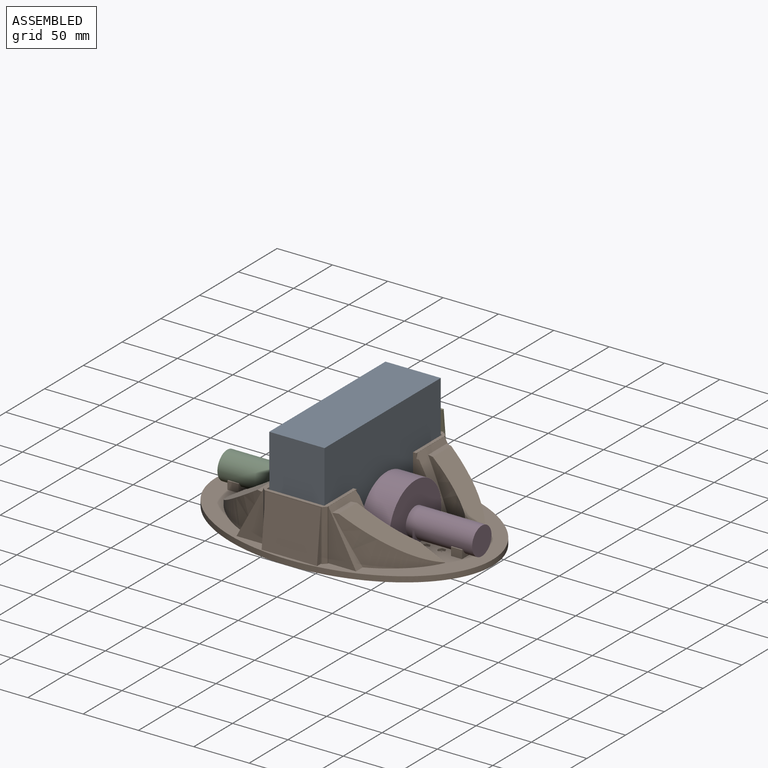
[diagram: assembled view]
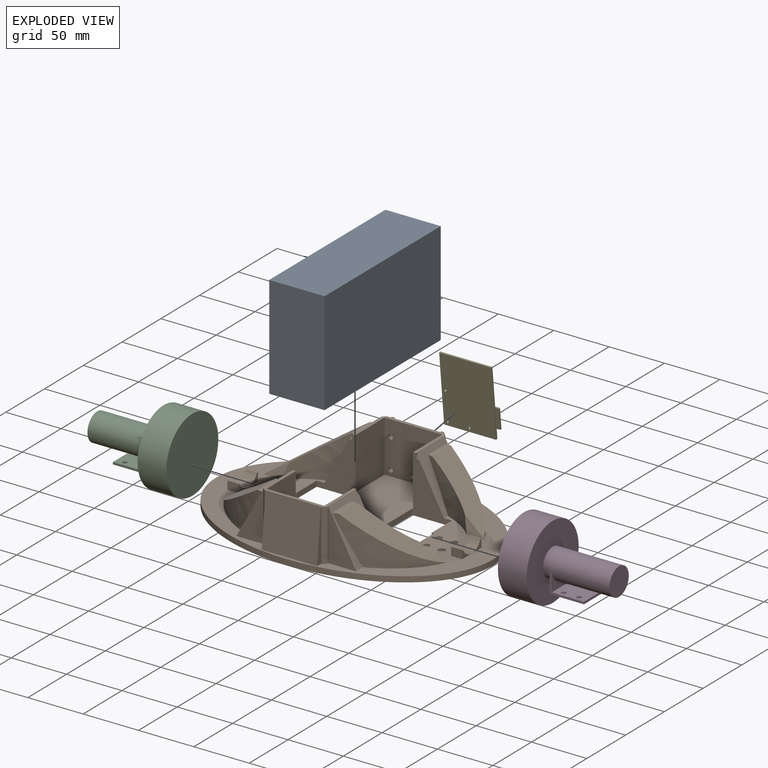
[diagram: exploded view]
GUIDED TOUR — FREECAD ASSEMBLY "chassis-v1"

This assembly has 5 components, labeled P0..P4 below (a component is one placed body or linked part; the same part can appear more than once), held together by 0 modeled joints plus 4 derived contact edges. A joint is a constraint between two components; its type names the relative motion it leaves free:
  CONTACT — a derived adjacency edge — the two components touch in the source model (clearance under 2% of the assembly's diagonal); it is measured from the geometry, not a modeled constraint.
Axis/direction vectors are unit vectors and 'through' points are millimeter coordinates, both in the assembly's world frame.

MATES
  1. CONTACT "contact_0_1": P0 <-> P1, contact direction (0.000, 0.000, -1.000) through (25.76, 75.01, 5.01) mm (derived from contact, not a modeled constraint)
  2. CONTACT "contact_1_2": P1 <-> P2, contact direction (-1.000, 0.000, 0.000) through (-63.00, -12.50, 0.00) mm (derived from contact, not a modeled constraint)
  3. CONTACT "contact_1_3": P1 <-> P3, contact direction (1.000, 0.000, 0.000) through (63.04, 12.54, -0.21) mm (derived from contact, not a modeled constraint)
  4. CONTACT "contact_1_4": P1 <-> P4, contact direction (-0.019, 0.990, 0.143) through (-19.79, 86.49, 10.50) mm (derived from contact, not a modeled constraint)

ASSEMBLY ORDER
  1. P1 — the base component [order heuristic]
  2. P2 — core [order heuristic]
  3. P3 — core [order heuristic]
  4. P0 [order verified]
  5. P4 [order verified]
Order-tag legend:
  [order verified] — this step's position reverses a verified removal order: the component was checked to insert without passing through the ones already placed.
  [order heuristic] — the first 3 components form the assembly's core: parts whose collision-free extraction could not be verified, listed in mate-graph order.

Of the 5 components, 5 carry a construction recipe — the FreeCAD feature program (sketches with constraints, then the solid features that consume them) that regenerates the part from scratch, quoted from this document or from the linked companion document it references; the rest are supplied as boundary geometry only. The tour below walks the components in assembly order: each is shown spotlighted twice — in the assembled view, then in the exploded view, where a leader line traces a displaced component back to its assembled socket (components that stay in place when exploded have no leader line; saturated green if recipe-attached, orange if geometry-only; every other component desaturated gray) — followed by its recipe or geometry summary and the mates that hold it.
NOTE — this tour is split across 2 documents so each fits a 32k-token context. This is document 1: the component sections continue in the remaining 1 document, each repeating the header above.
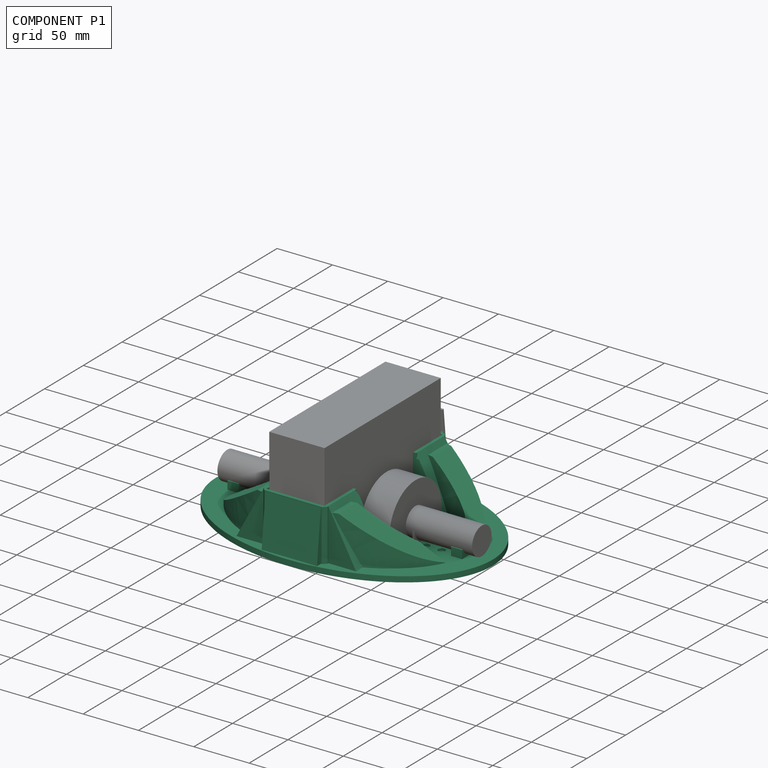
[diagram: component P1 — assembled]
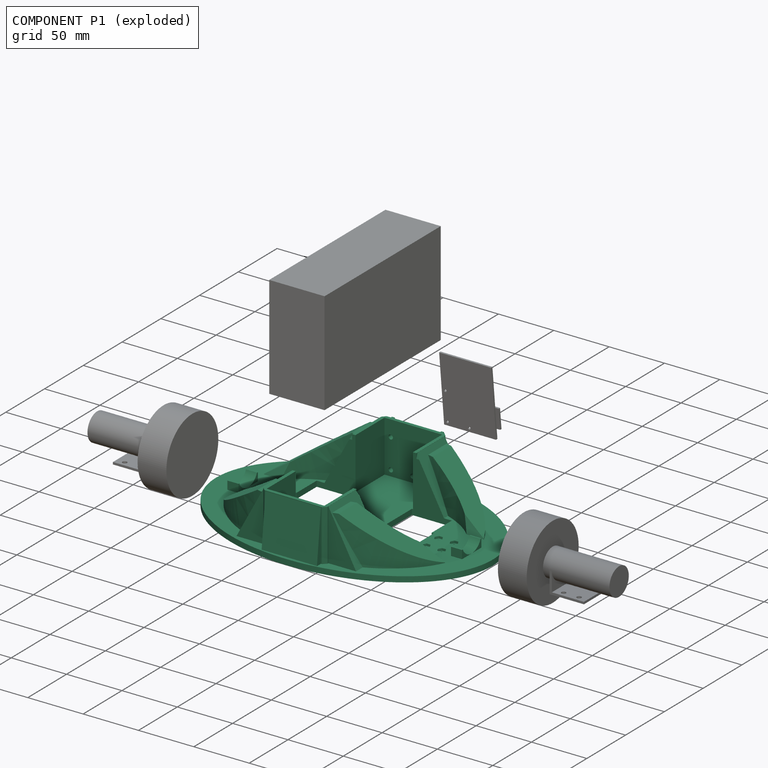
[diagram: component P1 — exploded]
COMPONENT P1 — recipe-attached ("Chassis V002", modeled in this document).
Held by: resting contact with P0 (derived edge); resting contact with P2 (derived edge); resting contact with P3 (derived edge); resting contact with P4 (derived edge).
Construction recipe (the document's own serialized feature program — sketch geometry with constraints, then the solid features built on it; lengths are millimeters unless a unit is written):

FEATURE [Sketcher::SketchObject] Sketch015
  ArcFitTolerance = 0
  AttachmentSupport = -> [XY_Plane]
  FullyConstrained = true
  MakeInternals = false
  MapMode = 5
  expr: Constraints[11] = <<common-components>>#<<battery_dim>>.width + <<common-components>>#<<battery_dim>>.tolerance * 2
  expr: Constraints[12] = <<common-components>>#<<battery_dim>>.length + <<common-components>>#<<battery_dim>>.tolerance * 2
  expr: Constraints[50] = <<common-components>>#<<dc_motor_dim>>.wheel_diameter + <<common-components>>#<<dc_motor_dim>>.wheel_tolerance * 2
  sketch-geometry (20):
    g0: LineSegment StartX=-26 StartY=76 StartZ=0 EndX=26 EndY=76 EndZ=0
    g1: LineSegment [constr] StartX=26 StartY=76 StartZ=0 EndX=26 EndY=-76 EndZ=0
    g2: LineSegment StartX=26 StartY=-76 StartZ=0 EndX=-26 EndY=-76 EndZ=0
    g3: LineSegment [constr] StartX=-26 StartY=-76 StartZ=0 EndX=-26 EndY=76 EndZ=0
    g4: GeomPoint X=1.1e-15 Y=-76 Z=0
    g5: GeomPoint X=-1.1e-15 Y=76 Z=0
    g6: LineSegment StartX=26 StartY=76 StartZ=0 EndX=26 EndY=38.5 EndZ=0
    g7: LineSegment StartX=26 StartY=38.5 StartZ=0 EndX=29 EndY=38.5 EndZ=0
    g8: LineSegment StartX=29 StartY=38.5 StartZ=0 EndX=29 EndY=79 EndZ=0
    g9: LineSegment StartX=29 StartY=79 StartZ=0 EndX=-29 EndY=79 EndZ=0
    g10: LineSegment StartX=-29 StartY=79 StartZ=0 EndX=-29 EndY=38.5 EndZ=0
    g11: LineSegment StartX=-29 StartY=38.5 StartZ=0 EndX=-26 EndY=38.5 EndZ=0
    g12: LineSegment StartX=-26 StartY=38.5 StartZ=0 EndX=-26 EndY=76 EndZ=0
    g13: LineSegment StartX=-26 StartY=-38.5 StartZ=0 EndX=-26 EndY=-76 EndZ=0
    g14: LineSegment StartX=-26 StartY=-38.5 StartZ=0 EndX=-29 EndY=-38.5 EndZ=0
    g15: LineSegment StartX=-29 StartY=-38.5 StartZ=0 EndX=-29 EndY=-79 EndZ=0
    g16: LineSegment StartX=-29 StartY=-79 StartZ=0 EndX=29 EndY=-79 EndZ=0
    g17: LineSegment StartX=29 StartY=-79 StartZ=0 EndX=29 EndY=-38.5 EndZ=0
    g18: LineSegment StartX=29 StartY=-38.5 StartZ=0 EndX=26 EndY=-38.5 EndZ=0
    g19: LineSegment StartX=26 StartY=-38.5 StartZ=0 EndX=26 EndY=-76 EndZ=0
  constraints (53):
    c: Coincident(g0,g1)
    c: Coincident(g1,g2)
    c: Coincident(g2,g3)
    c: Coincident(g3,g0)
    c: Horizontal(g0)
    c: Horizontal(g2)
    c: Vertical(g1)
    c: Vertical(g3)
    c: Symmetric(g2,g1,g4)
    c: Symmetric(g0,g0,g5)
    c: Symmetric(g5,g4,g-1)
    c: Distance(g0) = 52
    c: Distance(g1) = 152
    c: PointOnObject(g6,g1)
    c: Coincident(g7,g6)
    c: Horizontal(g7)
    c: Coincident(g8,g7)
    c: Vertical(g8)
    c: Coincident(g9,g8)
    c: Horizontal(g9)
    c: Coincident(g10,g9)
    c: Vertical(g10)
    c: Coincident(g11,g10)
    c: PointOnObject(g11,g3)
    c: Horizontal(g11)
    c: Coincident(g12,g11)
    c: PointOnObject(g13,g3)
    c: Coincident(g13,g2)
    c: Coincident(g14,g13)
    c: Horizontal(g14)
    c: Coincident(g15,g14)
    c: Vertical(g15)
    c: Coincident(g16,g15)
    c: Horizontal(g16)
    c: Coincident(g17,g16)
    c: Vertical(g17)
    c: Coincident(g18,g17)
    c: PointOnObject(g18,g1)
    c: Coincident(g19,g18)
    c: Coincident(g19,g1)
    c: Horizontal(g18)
    c: Equal(g8,g10)
    c: Equal(g15,g17)
    c: Equal(g15,g10)
    c: Equal(g11,g7)
    c: Equal(g11,g14)
    c: Equal(g14,g18)
    c: Distance(g11) = 3
    c: DistanceY(g0,g9) = 3
    c: DistanceY(g15,g2) = 3
    c: DistanceY(g13,g11) = 77
    c: Coincident(g12,g0)
    c: Coincident(g6,g0)
FEATURE [Sketcher::SketchObject] Sketch008
  ArcFitTolerance = 0
  AttachmentSupport = -> [YZ_Plane]
  FullyConstrained = true
  MakeInternals = false
  MapMode = 5
  Placement = pos=(0,0,0) rot=(0.57735,0.57735,0.57735;2.0944rad)
  expr: Constraints[1] = <<common-components>>#<<dc_motor_dim>>.motor_diameter
  expr: Constraints[2] = <<common-components>>#<<dc_motor_dim>>.bracket_motor_distance + <<common-components>>#<<dc_motor_dim>>.motor_diameter / 2
  sketch-geometry (1):
    g0: Circle CenterX=0 CenterY=17.5 CenterZ=0 NormalX=0 NormalY=0 NormalZ=1 AngleXU=0 Radius=12.5
  constraints (3):
    c: PointOnObject(g0,g-2)
    c: Diameter(g0) = 25
    c: DistanceY(g-1,g0) = 17.5
FEATURE [Sketcher::SketchObject] Sketch007
  ArcFitTolerance = 0
  AttachmentSupport = -> [XY_Plane]
  FullyConstrained = true
  MakeInternals = false
  MapMode = 5
  expr: Constraints[27] = <<common-components>>#<<dc_motor_dim>>.motor_diameter
  expr: Constraints[5] = <<dim>>.wheel_distance / 2 + <<common-components>>#<<dc_motor_dim>>.wheel_tolerance * 2 + <<common-components>>#<<dc_motor_dim>>.wheel_width + <<common-components>>#<<dc_motor_dim>>.wheel_bracket_distance + <<common-components>>#<<dc_motor_dim>>.bracket_length
  sketch-geometry (10):
    g0: LineSegment [constr] StartX=0 StartY=0 StartZ=0 EndX=-96 EndY=0 EndZ=0
    g1: LineSegment [constr] StartX=0 StartY=0 StartZ=0 EndX=96 EndY=0 EndZ=0
    g2: LineSegment StartX=-96 StartY=12.5 StartZ=0 EndX=-106 EndY=12.5 EndZ=0
    g3: LineSegment StartX=-106 StartY=12.5 StartZ=0 EndX=-106 EndY=-12.5 EndZ=0
    g4: LineSegment StartX=-106 StartY=-12.5 StartZ=0 EndX=-96 EndY=-12.5 EndZ=0
    g5: LineSegment StartX=-96 StartY=-12.5 StartZ=0 EndX=-96 EndY=12.5 EndZ=0
    g6: LineSegment StartX=96 StartY=12.5 StartZ=0 EndX=106 EndY=12.5 EndZ=0
    g7: LineSegment StartX=106 StartY=12.5 StartZ=0 EndX=106 EndY=-12.5 EndZ=0
    g8: LineSegment StartX=106 StartY=-12.5 StartZ=0 EndX=96 EndY=-12.5 EndZ=0
    g9: LineSegment StartX=96 StartY=-12.5 StartZ=0 EndX=96 EndY=12.5 EndZ=0
  constraints (28):
    c: Coincident(g0,g-1)
    c: Coincident(g1,g0)
    c: Horizontal(g1)
    c: Horizontal(g0)
    c: Equal(g1,g0)
    c: Distance(g0) = 96
    c: Coincident(g2,g3)
    c: Coincident(g3,g4)
    c: Coincident(g4,g5)
    c: Coincident(g5,g2)
    c: Horizontal(g2)
    c: Horizontal(g4)
    c: Vertical(g3)
    c: Vertical(g5)
    c: Coincident(g6,g7)
    c: Coincident(g7,g8)
    c: Coincident(g8,g9)
    c: Coincident(g9,g6)
    c: Horizontal(g6)
    c: Horizontal(g8)
    c: Vertical(g7)
    c: Vertical(g9)
    c: Symmetric(g6,g8,g1)
    c: Symmetric(g2,g4,g0)
    c: Distance(g2) = 10
    c: Equal(g9,g5)
    c: Equal(g2,g6)
    c: Distance(g3) = 25
FEATURE [Sketcher::SketchObject] Sketch019
  ArcFitTolerance = 0
  AttachmentSupport = -> [XZ_Plane]
  FullyConstrained = true
  MakeInternals = false
  MapMode = 5
  Placement = pos=(0,0,0) rot=(1,0,0;1.5708rad)
  expr: Constraints[14] = <<common-components>>#<<battery_dim>>.width + <<common-components>>#<<battery_dim>>.tolerance * 2 + 3 * 2
  expr: Constraints[15] = <<common-components>>#<<battery_dim>>.height / 2 + 5
  sketch-geometry (7):
    g0: LineSegment StartX=29 StartY=51.5 StartZ=0 EndX=100 EndY=5 EndZ=0
    g1: LineSegment StartX=100 StartY=5 StartZ=0 EndX=100 EndY=52.5 EndZ=0
    g2: LineSegment StartX=100 StartY=52.5 StartZ=0 EndX=-100 EndY=52.5 EndZ=0
    g3: LineSegment StartX=-100 StartY=52.5 StartZ=0 EndX=-100 EndY=5 EndZ=0
    g4: LineSegment StartX=-100 StartY=5 StartZ=0 EndX=-29 EndY=51.5 EndZ=0
    g5: LineSegment StartX=-29 StartY=51.5 StartZ=0 EndX=29 EndY=51.5 EndZ=0
    g6: GeomPoint [constr] X=1.5e-15 Y=52.5 Z=0
  constraints (19):
    c: Coincident(g1,g0)
    c: Coincident(g2,g1)
    c: Horizontal(g2)
    c: Coincident(g3,g2)
    c: Coincident(g4,g3)
    c: Coincident(g5,g4)
    c: Coincident(g5,g0)
    c: Horizontal(g5)
    c: Vertical(g1)
    c: Vertical(g3)
    c: Equal(g0,g4)
    c: Equal(g3,g1)
    c: Symmetric(g1,g2,g6)
    c: PointOnObject(g6,g-2)
    c: Distance(g5) = 58
    c: DistanceY(g-1,g0) = 51.5
    c: DistanceY(g0,g1) = 1
    c: DistanceY(g-1,g3) = 5
    c: DistanceX(g2,g1) = 200
FEATURE [Sketcher::SketchObject] Sketch018
  ArcFitTolerance = 0
  AttachmentSupport = -> [YZ_Plane]
  FullyConstrained = true
  MakeInternals = false
  MapMode = 5
  Placement = pos=(0,0,0) rot=(0.57735,0.57735,0.57735;2.0944rad)
  expr: Constraints[10] = <<common-components>>#<<battery_dim>>.height / 2 + 5
  sketch-geometry (5):
    g0: LineSegment StartX=-40 StartY=51.5 StartZ=0 EndX=40 EndY=51.5 EndZ=0
    g1: LineSegment StartX=40 StartY=51.5 StartZ=0 EndX=25 EndY=5 EndZ=0
    g2: LineSegment StartX=25 StartY=5 StartZ=0 EndX=-25 EndY=5 EndZ=0
    g3: LineSegment StartX=-25 StartY=5 StartZ=0 EndX=-40 EndY=51.5 EndZ=0
    g4: GeomPoint [constr] X=0 Y=51.5 Z=0
  constraints (13):
    c: Horizontal(g0)
    c: Coincident(g1,g0)
    c: Coincident(g2,g1)
    c: Coincident(g3,g2)
    c: Coincident(g3,g0)
    c: Horizontal(g2)
    c: Equal(g1,g3)
    c: Symmetric(g0,g0,g4)
    c: PointOnObject(g4,g-2)
    c: DistanceY(g-1,g1) = 5
    c: DistanceY(g-1,g0) = 51.5
    c: Distance(g2) = 50
    c: Distance(g0) = 80
FEATURE [Sketcher::SketchObject] Sketch017
  ArcFitTolerance = 0
  AttachmentSupport = -> [XY_Plane]
  FullyConstrained = false
  MakeInternals = false
  MapMode = 5
  expr: Constraints[21] = <<common-components>>#<<battery_dim>>.width / 2 + <<common-components>>#<<battery_dim>>.tolerance
  expr: Constraints[22] = <<common-components>>#<<battery_dim>>.length
  expr: Constraints[23] = <<common-components>>#<<dc_motor_dim>>.wheel_diameter + <<common-components>>#<<dc_motor_dim>>.wheel_tolerance * 2 + 25
  expr: Constraints[44] = <<common-components>>#<<battery_dim>>.width / 2 + <<common-components>>#<<battery_dim>>.tolerance
  sketch-geometry (22):
    g0: ArcOfEllipse CenterX=0 CenterY=0 CenterZ=0 NormalX=0 NormalY=0 NormalZ=1 MajorRadius=105 MinorRadius=77.4108 AngleXU=-3.14159 StartAngle=4.96261 EndAngle=7.60376
    g1: LineSegment [constr] StartX=-105 StartY=0 StartZ=0 EndX=105 EndY=0 EndZ=0
    g2: LineSegment [constr] StartX=0 StartY=-77.4108 StartZ=0 EndX=0 EndY=77.4108 EndZ=0
    g3: GeomPoint [constr] X=-70.9406 Y=-8.7e-15 Z=0
    g4: GeomPoint [constr] X=70.9406 Y=0 Z=0
    g5: ArcOfEllipse CenterX=0 CenterY=0 CenterZ=0 NormalX=0 NormalY=0 NormalZ=1 MajorRadius=95 MinorRadius=53.0245 AngleXU=-3.14159 StartAngle=4.98961 EndAngle=7.57676
    g6: LineSegment [constr] StartX=-95 StartY=0 StartZ=0 EndX=95 EndY=0 EndZ=0
    g7: LineSegment [constr] StartX=0 StartY=-53.0245 StartZ=0 EndX=0 EndY=53.0245 EndZ=0
    g8: GeomPoint [constr] X=-78.8251 Y=-9.7e-15 Z=0
    g9: GeomPoint [constr] X=78.8251 Y=0 Z=0
    g10: LineSegment StartX=-26 StartY=-51 StartZ=0 EndX=-26 EndY=-75 EndZ=0
    g11: LineSegment StartX=-26 StartY=75 StartZ=0 EndX=-26 EndY=51 EndZ=0
    g12: LineSegment [constr] StartX=-26 StartY=51 StartZ=0 EndX=-26 EndY=-51 EndZ=0
    g13: LineSegment [constr] StartX=0 StartY=119.322 StartZ=0 EndX=0 EndY=-85.8681 EndZ=0
    g14: ArcOfEllipse CenterX=0 CenterY=0 CenterZ=0 NormalX=0 NormalY=0 NormalZ=1 MajorRadius=104.992 MinorRadius=77.4111 AngleXU=4e-16 StartAngle=4.96263 EndAngle=7.60374
    g15: GeomPoint [constr] X=70.9286 Y=2.84e-14 Z=0
    g16: ArcOfEllipse CenterX=0 CenterY=0 CenterZ=0 NormalX=0 NormalY=0 NormalZ=1 MajorRadius=95.0275 MinorRadius=53.0233 AngleXU=2e-16 StartAngle=4.98953 EndAngle=7.57684
    g17: GeomPoint [constr] X=78.8591 Y=1.58e-14 Z=0
    g18: LineSegment StartX=26 StartY=-51 StartZ=0 EndX=26 EndY=-75 EndZ=0
    g19: LineSegment StartX=26 StartY=75 StartZ=0 EndX=26 EndY=51 EndZ=0
    g20: LineSegment [constr] StartX=26 StartY=51 StartZ=0 EndX=26 EndY=-51 EndZ=0
    g21: GeomPoint [constr] X=26 Y=0 Z=0
  constraints (41):
    c: InternalAlignment(g1-g4 -> g0) x4
    c: Coincident(g0,g-1)
    c: InternalAlignment(g6-g9 -> g5) x4
    c: Coincident(g5,g0)
    c: PointOnObject(g1,g-1)
    c: PointOnObject(g6,g1)
    c: Coincident(g10,g5)
    c: Coincident(g10,g0)
    c: Coincident(g11,g0)
    c: Coincident(g11,g5)
    c: Vertical(g11)
    c: Vertical(g10)
    c: Coincident(g12,g5)
    c: Coincident(g12,g5)
    c: Vertical(g12)
    c: DistanceX(g5,g0) = 26
    c: DistanceY(g0,g0) = 150
    c: Distance(g12) = 102
    c: DistanceX(g6,g0) = 95
    c: DistanceX(g1,g0) = 105
    c: PointOnObject(g13,g-2)
    c: PointOnObject(g13,g-2)
    c: InternalAlignment(g15,g14)
    c: InternalAlignment(g17,g16)
    c: Coincident(g16,g14)
    c: Coincident(g18,g16)
    c: Coincident(g18,g14)
    c: Coincident(g19,g14)
    c: Coincident(g19,g16)
    c: Coincident(g20,g16)
    c: Coincident(g20,g16)
    c: Distance(g20) = 102
    c: Coincident(g14,g0)
    c: Vertical(g19)
    c: Vertical(g20)
    c: Vertical(g18)
    c: DistanceY(g14,g0) = 0
    c: DistanceY(g0,g14) = 0
    c: DistanceX(g0,g16) = 26
    c: PointOnObject(g21,g1)
    c: Symmetric(g16,g16,g21)
FEATURE [Sketcher::SketchObject] Sketch006
  ArcFitTolerance = 0
  AttachmentSupport = -> [XY_Plane]
  FullyConstrained = true
  MakeInternals = false
  MapMode = 5
  expr: Constraints[10] = <<common-components>>#<<battery_dim>>.length
  expr: Constraints[11] = <<common-components>>#<<battery_dim>>.width
  expr: Constraints[16] = <<common-components>>#<<dc_motor_dim>>.wheel_diameter + <<common-components>>#<<dc_motor_dim>>.wheel_tolerance * 2
  expr: Constraints[47] = <<common-components>>#<<battery_dim>>.tolerance
  expr: Constraints[48] = <<common-components>>#<<battery_dim>>.tolerance
  expr: Constraints[49] = <<common-components>>#<<battery_dim>>.tolerance
  expr: Constraints[60] = <<common-components>>#<<battery_dim>>.length / 2 - <<common-components>>#<<dc_motor_dim>>.wheel_diameter / 2 - <<common-components>>#<<dc_motor_dim>>.wheel_tolerance
  expr: Constraints[89] = <<common-components>>#<<battery_dim>>.tolerance
  expr: Constraints[90] = <<common-components>>#<<battery_dim>>.tolerance
  expr: Constraints[91] = <<common-components>>#<<battery_dim>>.tolerance
  sketch-geometry (40):
    g0: LineSegment [constr] StartX=-25 StartY=75 StartZ=0 EndX=25 EndY=75 EndZ=0
    g1: LineSegment [constr] StartX=25 StartY=75 StartZ=0 EndX=25 EndY=-75 EndZ=0
    g2: LineSegment [constr] StartX=25 StartY=-75 StartZ=0 EndX=-25 EndY=-75 EndZ=0
    g3: LineSegment [constr] StartX=-25 StartY=-75 StartZ=0 EndX=-25 EndY=75 EndZ=0
    g4: GeomPoint [constr] X=0 Y=0 Z=0
    g5: GeomPoint [constr] X=-25 Y=38.5 Z=0
    g6: GeomPoint [constr] X=-25 Y=-38.5 Z=0
    g7: GeomPoint [constr] X=25 Y=38.5 Z=0
    g8: GeomPoint [constr] X=25 Y=-38.5 Z=0
    g9: GeomPoint [constr] X=25 Y=0 Z=0
    g10: LineSegment StartX=-26 StartY=38.5 StartZ=0 EndX=-26 EndY=75 EndZ=0
    g11: LineSegment StartX=-26 StartY=75 StartZ=0 EndX=-29 EndY=75 EndZ=0
    g12: LineSegment StartX=-29 StartY=75 StartZ=0 EndX=-29 EndY=38.5 EndZ=0
    g13: LineSegment StartX=-29 StartY=38.5 StartZ=0 EndX=-26 EndY=38.5 EndZ=0
    g14: LineSegment StartX=-26 StartY=-38.5 StartZ=0 EndX=-29 EndY=-38.5 EndZ=0
    g15: LineSegment StartX=-29 StartY=-38.5 StartZ=0 EndX=-29 EndY=-75 EndZ=0
    g16: LineSegment StartX=-29 StartY=-75 StartZ=0 EndX=-26 EndY=-75 EndZ=0
    g17: LineSegment StartX=-26 StartY=-75 StartZ=0 EndX=-26 EndY=-38.5 EndZ=0
    g18: LineSegment StartX=-25 StartY=76 StartZ=0 EndX=25 EndY=76 EndZ=0
    g19: LineSegment StartX=25 StartY=76 StartZ=0 EndX=25 EndY=79 EndZ=0
    g20: LineSegment StartX=25 StartY=79 StartZ=0 EndX=-25 EndY=79 EndZ=0
    g21: LineSegment StartX=-25 StartY=79 StartZ=0 EndX=-25 EndY=76 EndZ=0
    g22: GeomPoint [constr] X=0 Y=76 Z=0
    g23: LineSegment [constr] StartX=-26 StartY=56.75 StartZ=0 EndX=-25 EndY=56.75 EndZ=0
    g24: LineSegment [constr] StartX=-26 StartY=-56.75 StartZ=0 EndX=-25 EndY=-56.75 EndZ=0
    g25: LineSegment StartX=26 StartY=38.5 StartZ=0 EndX=26 EndY=75 EndZ=0
    g26: LineSegment StartX=26 StartY=75 StartZ=0 EndX=29 EndY=75 EndZ=0
    g27: LineSegment StartX=29 StartY=75 StartZ=0 EndX=29 EndY=38.5 EndZ=0
    g28: LineSegment StartX=29 StartY=38.5 StartZ=0 EndX=26 EndY=38.5 EndZ=0
    g29: LineSegment StartX=26 StartY=-38.5 StartZ=0 EndX=29 EndY=-38.5 EndZ=0
    g30: LineSegment StartX=29 StartY=-38.5 StartZ=0 EndX=29 EndY=-75 EndZ=0
    g31: LineSegment StartX=29 StartY=-75 StartZ=0 EndX=26 EndY=-75 EndZ=0
    g32: LineSegment StartX=26 StartY=-75 StartZ=0 EndX=26 EndY=-38.5 EndZ=0
    g33: LineSegment StartX=-25 StartY=-76 StartZ=0 EndX=25 EndY=-76 EndZ=0
    g34: LineSegment StartX=25 StartY=-76 StartZ=0 EndX=25 EndY=-79 EndZ=0
    g35: LineSegment StartX=25 StartY=-79 StartZ=0 EndX=-25 EndY=-79 EndZ=0
    g36: LineSegment StartX=-25 StartY=-79 StartZ=0 EndX=-25 EndY=-76 EndZ=0
    g37: GeomPoint [constr] X=0 Y=-76 Z=0
    g38: LineSegment [constr] StartX=25 StartY=-56.75 StartZ=0 EndX=26 EndY=-56.75 EndZ=0
    g39: LineSegment [constr] StartX=25 StartY=56.75 StartZ=0 EndX=26 EndY=56.75 EndZ=0
  constraints (103):
    c: Coincident(g0,g1)
    c: Coincident(g1,g2)
    c: Coincident(g2,g3)
    c: Coincident(g3,g0)
    c: Horizontal(g0)
    c: Horizontal(g2)
    c: Vertical(g1)
    c: Vertical(g3)
    c: Symmetric(g1,g0,g4)
    c: Coincident(g4,g-1)
    c: Distance(g1) = 150
    c: Distance(g0) = 50
    c: PointOnObject(g5,g3)
    c: PointOnObject(g6,g3)
    c: PointOnObject(g7,g1)
    c: PointOnObject(g8,g1)
    c: DistanceY(g8,g7) = 77
    c: DistanceY(g5,g7) = 0
    c: DistanceY(g8,g6) = 0
    c: Symmetric(g7,g8,g9)
    c: PointOnObject(g9,g-1)
    c: Vertical(g10)
    c: Coincident(g11,g10)
    c: Coincident(g12,g11)
    c: Vertical(g12)
    c: Coincident(g13,g12)
    c: Coincident(g13,g10)
    c: Horizontal(g14)
    c: Coincident(g15,g14)
    c: Vertical(g15)
    c: Coincident(g16,g15)
    c: Horizontal(g16)
    c: Coincident(g17,g16)
    c: Coincident(g17,g14)
    c: Vertical(g17)
    c: Equal(g14,g13)
    c: Horizontal(g13)
    c: Equal(g15,g12)
    c: Horizontal(g11)
    c: Horizontal(g18)
    c: Coincident(g19,g18)
    c: Vertical(g19)
    c: Coincident(g20,g19)
    c: Horizontal(g20)
    c: Coincident(g21,g20)
    c: Coincident(g21,g18)
    c: Vertical(g21)
    c: DistanceX(g10,g0) = 1
    c: DistanceX(g16,g2) = 1
    c: DistanceY(g0,g18) = 1
    c: Equal(g21,g11)
    c: Symmetric(g18,g18,g22)
    c: PointOnObject(g22,g-2)
    c: Horizontal(g23)
    c: Horizontal(g24)
    c: Symmetric(g0,g5,g23)
    c: Symmetric(g6,g2,g24)
    c: Symmetric(g14,g16,g24)
    c: Symmetric(g10,g10,g23)
    c: Distance(g11) = 3
    c: Distance(g12) = 36.5
    c: Vertical(g25)
    c: Coincident(g26,g25)
    c: Coincident(g27,g26)
    c: Vertical(g27)
    c: Coincident(g28,g27)
    c: Coincident(g28,g25)
    c: Horizontal(g29)
    c: Coincident(g30,g29)
    c: Vertical(g30)
    c: Coincident(g31,g30)
    c: Horizontal(g31)
    c: Coincident(g32,g31)
    c: Coincident(g32,g29)
    c: Vertical(g32)
    c: Equal(g29,g28)
    c: Horizontal(g28)
    c: Equal(g30,g27)
    c: Horizontal(g26)
    c: Distance(g26) = 3
    c: Horizontal(g33)
    c: Coincident(g34,g33)
    c: Vertical(g34)
    c: Coincident(g35,g34)
    c: Horizontal(g35)
    c: Coincident(g36,g35)
    c: Coincident(g36,g33)
    c: Vertical(g36)
    c: Symmetric(g33,g33,g37)
    c: DistanceY(g33,g1) = 1
    c: DistanceX(g0,g25) = 1
    c: DistanceX(g1,g31) = 1
    c: Equal(g31,g34)
    c: Horizontal(g38)
    c: Horizontal(g39)
    c: Symmetric(g25,g25,g39)
    c: Symmetric(g29,g31,g38)
    c: Symmetric(g8,g1,g38)
    c: Symmetric(g0,g7,g39)
    c: PointOnObject(g37,g-2)
    c: Equal(g27,g10)
    c: Equal(g33,g18)
    c: Equal(g18,g0)
FEATURE [Sketcher::SketchObject] Sketch
  ArcFitTolerance = 0
  AttachmentSupport = -> [XY_Plane]
  FullyConstrained = false
  MakeInternals = false
  MapMode = 5
  expr: Constraints[11] = <<common-components>>#<<dc_motor_dim>>.wheel_diameter + <<common-components>>#<<dc_motor_dim>>.wheel_tolerance * 2
  expr: Constraints[12] = <<common-components>>#<<dc_motor_dim>>.wheel_width + <<common-components>>#<<dc_motor_dim>>.wheel_tolerance
  expr: Constraints[164] = <<common-components>>#<<dc_motor_dim>>.bracket_thickness
  expr: Constraints[171] = <<common-components>>#<<dc_motor_dim>>.bracket_length / 2 + <<common-components>>#<<dc_motor_dim>>.bracket_thickness - 2.5
  expr: Constraints[22] = <<common-components>>#<<battery_dim>>.length
  expr: Constraints[23] = <<common-components>>#<<battery_dim>>.width
  expr: Constraints[25] = <<common-components>>#<<dim>>.max_diameter
  expr: Constraints[41] = <<common-components>>#<<dc_motor_dim>>.bracket_screw_diameter
  expr: Constraints[45] = <<common-components>>#<<dc_motor_dim>>.bracket_hole_width
  expr: Constraints[46] = <<common-components>>#<<dc_motor_dim>>.bracket_hole_length
  expr: Constraints[57] = <<common-components>>#<<dc_motor_dim>>.motor_diameter
  expr: Constraints[63] = <<common-components>>#<<dc_motor_dim>>.wheel_tolerance
  expr: Constraints[67] = <<common-components>>#<<dc_motor_dim>>.wheel_tolerance
  expr: Constraints[86] = <<common-components>>#<<dc_motor_dim>>.bracket_length + <<common-components>>#<<dc_motor_dim>>.bracket_thickness
  sketch-geometry (81):
    g0: Circle [constr] CenterX=0 CenterY=0 CenterZ=0 NormalX=0 NormalY=0 NormalZ=1 AngleXU=0 Radius=125
    g1: LineSegment StartX=-56 StartY=38.5 StartZ=0 EndX=-25 EndY=38.5 EndZ=0
    g2: LineSegment StartX=-25 StartY=38.5 StartZ=0 EndX=-25 EndY=-38.5 EndZ=0
    g3: LineSegment StartX=-25 StartY=-38.5 StartZ=0 EndX=-56 EndY=-38.5 EndZ=0
    g4: LineSegment [constr] StartX=-56 StartY=-38.5 StartZ=0 EndX=-56 EndY=38.5 EndZ=0
    g5: GeomPoint X=-56 Y=0 Z=0
    g6: GeomPoint X=0 Y=0 Z=0
    g7: LineSegment [constr] StartX=-56 StartY=-12.5 StartZ=0 EndX=-56 EndY=12.5 EndZ=0
    g8: LineSegment [constr] StartX=-25 StartY=-75 StartZ=0 EndX=25 EndY=-75 EndZ=0
    g9: LineSegment [constr] StartX=25 StartY=-75 StartZ=0 EndX=25 EndY=75 EndZ=0
    g10: LineSegment [constr] StartX=25 StartY=75 StartZ=0 EndX=-25 EndY=75 EndZ=0
    g11: LineSegment [constr] StartX=-25 StartY=75 StartZ=0 EndX=-25 EndY=-75 EndZ=0
    g12: GeomPoint [constr] X=4e-16 Y=-75 Z=0
    g13: GeomPoint [constr] X=-4e-16 Y=75 Z=0
    g14: GeomPoint [constr] X=0 Y=0 Z=0
    g15: Circle CenterX=-70.5 CenterY=8 CenterZ=0 NormalX=0 NormalY=0 NormalZ=1 AngleXU=0 Radius=1.5
    g16: Circle CenterX=-70.5 CenterY=-8 CenterZ=0 NormalX=0 NormalY=0 NormalZ=1 AngleXU=0 Radius=1.5
    g17: Circle CenterX=-84.5 CenterY=-8 CenterZ=0 NormalX=0 NormalY=0 NormalZ=1 AngleXU=0 Radius=1.5
    g18: Circle CenterX=-84.5 CenterY=8 CenterZ=0 NormalX=0 NormalY=0 NormalZ=1 AngleXU=0 Radius=1.5
    g19: LineSegment [constr] StartX=-84.5 StartY=8 StartZ=0 EndX=-70.5 EndY=8 EndZ=0
    g20: LineSegment [constr] StartX=-84.5 StartY=-8 StartZ=0 EndX=-70.5 EndY=-8 EndZ=0
    g21: LineSegment [constr] StartX=-84.5 StartY=-8 StartZ=0 EndX=-84.5 EndY=8 EndZ=0
    g22: GeomPoint [constr] X=-84.5 Y=0 Z=0
    g23: LineSegment [constr] StartX=-56 StartY=38.5 StartZ=0 EndX=-56 EndY=12.5 EndZ=0
    g24: LineSegment [constr] StartX=-56 StartY=-38.5 StartZ=0 EndX=-56 EndY=-12.5 EndZ=0
    g25: LineSegment [constr] StartX=-56 StartY=-12.5 StartZ=0 EndX=-63 EndY=-12.5 EndZ=0
    g26: LineSegment StartX=-63 StartY=-12.5 StartZ=0 EndX=-63 EndY=12.5 EndZ=0
    g27: LineSegment [constr] StartX=-63 StartY=12.5 StartZ=0 EndX=-56 EndY=12.5 EndZ=0
    g28: LineSegment StartX=-56 StartY=38.5 StartZ=0 EndX=-61 EndY=38.5 EndZ=0
    g29: LineSegment StartX=-61 StartY=38.5 StartZ=0 EndX=-61 EndY=12.5 EndZ=0
    g30: LineSegment StartX=-56 StartY=-38.5 StartZ=0 EndX=-61 EndY=-38.5 EndZ=0
    g31: LineSegment StartX=-61 StartY=-38.5 StartZ=0 EndX=-61 EndY=-12.5 EndZ=0
    g32: LineSegment StartX=-63 StartY=12.5 StartZ=0 EndX=-61 EndY=12.5 EndZ=0
    g33: LineSegment StartX=-63 StartY=-12.5 StartZ=0 EndX=-61 EndY=-12.5 EndZ=0
    g34: LineSegment [constr] StartX=-56 StartY=12.5 StartZ=0 EndX=-95 EndY=12.5 EndZ=0
    g35: LineSegment [constr] StartX=-95 StartY=12.5 StartZ=0 EndX=-95 EndY=-12.5 EndZ=0
    g36: LineSegment [constr] StartX=-95 StartY=-12.5 StartZ=0 EndX=-56 EndY=-12.5 EndZ=0
    g37: LineSegment [constr] StartX=-56 StartY=-12.5 StartZ=0 EndX=-56 EndY=12.5 EndZ=0
    g38: GeomPoint [constr] X=-77.5 Y=0 Z=0
    g39: LineSegment [constr] StartX=-77.5 StartY=0 StartZ=0 EndX=-77.5 EndY=8 EndZ=0
    g40: LineSegment StartX=56 StartY=38.5 StartZ=0 EndX=25 EndY=38.5 EndZ=0
    g41: LineSegment StartX=25 StartY=38.5 StartZ=0 EndX=25 EndY=-38.5 EndZ=0
    g42: LineSegment StartX=25 StartY=-38.5 StartZ=0 EndX=56 EndY=-38.5 EndZ=0
    g43: LineSegment [constr] StartX=56 StartY=-38.5 StartZ=0 EndX=56 EndY=38.5 EndZ=0
    g44: GeomPoint X=56 Y=0 Z=0
    g45: LineSegment [constr] StartX=56 StartY=-12.5 StartZ=0 EndX=56 EndY=12.5 EndZ=0
    g46: Circle CenterX=70.5 CenterY=8 CenterZ=0 NormalX=0 NormalY=0 NormalZ=1 AngleXU=0 Radius=1.5
    g47: Circle CenterX=70.5 CenterY=-8 CenterZ=0 NormalX=0 NormalY=0 NormalZ=1 AngleXU=0 Radius=1.5
    g48: Circle CenterX=84.5 CenterY=-8 CenterZ=0 NormalX=0 NormalY=0 NormalZ=1 AngleXU=0 Radius=1.5
    g49: Circle CenterX=84.5 CenterY=8 CenterZ=0 NormalX=0 NormalY=0 NormalZ=1 AngleXU=0 Radius=1.5
    g50: LineSegment [constr] StartX=84.5 StartY=8 StartZ=0 EndX=70.5 EndY=8 EndZ=0
    g51: LineSegment [constr] StartX=84.5 StartY=-8 StartZ=0 EndX=70.5 EndY=-8 EndZ=0
    g52: LineSegment [constr] StartX=84.5 StartY=-8 StartZ=0 EndX=84.5 EndY=8 EndZ=0
    g53: GeomPoint [constr] X=84.5 Y=3.5e-15 Z=0
    g54: LineSegment [constr] StartX=56 StartY=38.5 StartZ=0 EndX=56 EndY=12.5 EndZ=0
    g55: LineSegment [constr] StartX=56 StartY=-38.5 StartZ=0 EndX=56 EndY=-12.5 EndZ=0
    g56: LineSegment [constr] StartX=56 StartY=-12.5 StartZ=0 EndX=63 EndY=-12.5 EndZ=0
    g57: LineSegment StartX=63 StartY=-12.5 StartZ=0 EndX=63 EndY=12.5 EndZ=0
    g58: LineSegment [constr] StartX=63 StartY=12.5 StartZ=0 EndX=56 EndY=12.5 EndZ=0
    g59: LineSegment StartX=56 StartY=38.5 StartZ=0 EndX=61 EndY=38.5 EndZ=0
    g60: LineSegment StartX=61 StartY=38.5 StartZ=0 EndX=61 EndY=12.5 EndZ=0
    g61: LineSegment StartX=56 StartY=-38.5 StartZ=0 EndX=61 EndY=-38.5 EndZ=0
    g62: LineSegment StartX=61 StartY=-38.5 StartZ=0 EndX=61 EndY=-12.5 EndZ=0
    g63: LineSegment StartX=63 StartY=12.5 StartZ=0 EndX=61 EndY=12.5 EndZ=0
    g64: LineSegment StartX=63 StartY=-12.5 StartZ=0 EndX=61 EndY=-12.5 EndZ=0
    g65: LineSegment [constr] StartX=56 StartY=12.5 StartZ=0 EndX=95 EndY=12.5 EndZ=0
    g66: LineSegment [constr] StartX=95 StartY=12.5 StartZ=0 EndX=95 EndY=-12.5 EndZ=0
    g67: LineSegment [constr] StartX=95 StartY=-12.5 StartZ=0 EndX=56 EndY=-12.5 EndZ=0
    g68: LineSegment [constr] StartX=56 StartY=-12.5 StartZ=0 EndX=56 EndY=12.5 EndZ=0
    g69: GeomPoint [constr] X=77.5 Y=0 Z=0
    g70: LineSegment [constr] StartX=77.5 StartY=0 StartZ=0 EndX=77.5 EndY=8 EndZ=0
    g71: LineSegment [constr] StartX=-77.5 StartY=0 StartZ=0 EndX=-63 EndY=0 EndZ=0
    g72: LineSegment [constr] StartX=77.5 StartY=0 StartZ=0 EndX=63 EndY=0 EndZ=0
    g73: Ellipse CenterX=0 CenterY=0 CenterZ=0 NormalX=0 NormalY=0 NormalZ=1 MajorRadius=125 MinorRadius=86.8613 AngleXU=0
    g74: LineSegment [constr] StartX=125 StartY=0 StartZ=0 EndX=-125 EndY=0 EndZ=0
    g75: LineSegment [constr] StartX=0 StartY=86.8613 StartZ=0 EndX=0 EndY=-86.8613 EndZ=0
    g76: GeomPoint [constr] X=89.8895 Y=0 Z=0
    g77: GeomPoint [constr] X=-89.8895 Y=0 Z=0
    g78: GeomPoint [constr] X=125 Y=0 Z=0
    g79: LineSegment [constr] StartX=25 StartY=-75 StartZ=0 EndX=26.49 EndY=-84.8884 EndZ=0
    g80: GeomPoint [constr] X=26.49 Y=-84.8884 Z=0
  constraints (191):
    c: Coincident(g0,g-1)
    c: Coincident(g1,g2)
    c: Coincident(g2,g3)
    c: Coincident(g3,g4)
    c: Coincident(g4,g1)
    c: Horizontal(g1)
    c: Horizontal(g3)
    c: Vertical(g2)
    c: Vertical(g4)
    c: Symmetric(g1,g3,g5)
    c: PointOnObject(g5,g-1)
    c: Distance(g2) = 77
    c: Distance(g1) = 31
    c: Vertical(g7)
    c: Coincident(g8,g9)
    c: Coincident(g9,g10)
    c: Coincident(g10,g11)
    c: Coincident(g11,g8)
    c: Horizontal(g8)
    c: Horizontal(g10)
    c: Vertical(g9)
    c: Vertical(g11)
    c: Distance(g11) = 150
    c: Distance(g10) = 50
    c: Symmetric(g8,g8,g12)
    c: Diameter(g0) = 250
    c: Symmetric(g10,g9,g13)
    c: Symmetric(g13,g12,g14)
    c: Coincident(g14,g6)
    c: Coincident(g19,g18)
    c: Coincident(g19,g15)
    c: Horizontal(g19)
    c: Coincident(g20,g17)
    c: Coincident(g20,g16)
    c: Horizontal(g20)
    c: Coincident(g21,g17)
    c: Coincident(g21,g18)
    c: Vertical(g21)
    c: Equal(g15,g18)
    c: Equal(g18,g17)
    c: Equal(g17,g16)
    c: Diameter(g18) = 3
    c: Equal(g19,g20)
    c: Symmetric(g18,g17,g22)
    c: PointOnObject(g22,g-1)
    c: Distance(g21) = 16
    c: Distance(g19) = 14
    c: Coincident(g23,g1)
    c: Coincident(g24,g3)
    c: Coincident(g25,g24)
    c: Coincident(g26,g25)
    c: Vertical(g26)
    c: Coincident(g27,g26)
    c: Coincident(g27,g23)
    c: Vertical(g23)
    c: Horizontal(g27)
    c: Horizontal(g25)
    c: Distance(g26) = 25
    c: Coincident(g28,g1)
    c: Horizontal(g28)
    c: Coincident(g29,g28)
    c: PointOnObject(g29,g27)
    c: Vertical(g29)
    c: Distance(g28) = 5
    c: Coincident(g30,g3)
    c: Horizontal(g30)
    c: Coincident(g31,g30)
    c: Distance(g30) = 5
    c: Vertical(g31)
    c: Coincident(g32,g26)
    c: Coincident(g32,g29)
    c: Coincident(g33,g26)
    c: Coincident(g33,g31)
    c: Symmetric(g24,g23,g5)
    c: PointOnObject(g31,g25)
    c: Coincident(g34,g35)
    c: Coincident(g35,g36)
    c: Coincident(g36,g37)
    c: Coincident(g37,g34)
    c: Horizontal(g34)
    c: Horizontal(g36)
    c: Vertical(g35)
    c: Vertical(g37)
    c: Coincident(g34,g7)
    c: Equal(g26,g35)
    c: Coincident(g7,g23)
    c: DistanceX(g34,g26) = 32
    c: PointOnObject(g38,g-1)
    c: Coincident(g39,g38)
    c: Vertical(g39)
    c: Symmetric(g18,g15,g39)
    c: Coincident(g40,g41)
    c: Coincident(g41,g42)
    c: Coincident(g42,g43)
    c: Coincident(g43,g40)
    c: Horizontal(g40)
    c: Horizontal(g42)
    c: Vertical(g41)
    c: Vertical(g43)
    c: Symmetric(g40,g42,g44)
    c: Distance(g41) = 77
    c: Distance(g40) = 31
    c: Vertical(g45)
    c: Coincident(g50,g49)
    c: Coincident(g50,g46)
    c: Horizontal(g50)
    c: Coincident(g51,g48)
    c: Coincident(g51,g47)
    c: Horizontal(g51)
    c: Coincident(g52,g48)
    c: Coincident(g52,g49)
    c: Vertical(g52)
    c: Equal(g46,g49)
    c: Equal(g49,g48)
    c: Equal(g48,g47)
    c: Equal(g50,g51)
    c: Symmetric(g49,g48,g53)
    c: Distance(g52) = 16
    c: Distance(g50) = 14
    c: Coincident(g54,g40)
    c: Coincident(g55,g42)
    c: Coincident(g56,g55)
    c: Coincident(g57,g56)
    c: Vertical(g57)
    c: Coincident(g58,g57)
    c: Coincident(g58,g54)
    c: Vertical(g54)
    c: Horizontal(g58)
    c: Horizontal(g56)
    c: Distance(g57) = 25
    c: Coincident(g59,g40)
    c: Horizontal(g59)
    c: Coincident(g60,g59)
    c: PointOnObject(g60,g58)
    c: Vertical(g60)
    c: Distance(g59) = 5
    c: Coincident(g61,g42)
    c: Horizontal(g61)
    c: Coincident(g62,g61)
    c: Distance(g61) = 5
    c: Vertical(g62)
    c: Coincident(g63,g57)
    c: Coincident(g63,g60)
    c: Coincident(g64,g57)
    c: Coincident(g64,g62)
    c: Symmetric(g55,g54,g44)
    c: PointOnObject(g62,g56)
    c: Coincident(g65,g66)
    c: Coincident(g66,g67)
    c: Coincident(g67,g68)
    c: Coincident(g68,g65)
    c: Horizontal(g65)
    c: Horizontal(g67)
    c: Vertical(g66)
    c: Vertical(g68)
    c: Coincident(g65,g45)
    c: Equal(g57,g66)
    c: Coincident(g45,g54)
    c: Coincident(g70,g69)
    c: Vertical(g70)
    c: Symmetric(g49,g46,g70)
    c: PointOnObject(g1,g11)
    c: PointOnObject(g40,g9)
    c: PointOnObject(g44,g-1)
    c: Distance(g32) = 2
    c: Equal(g63,g32)
    c: Equal(g49,g18)
    c: Equal(g39,g70)
    c: Coincident(g71,g38)
    c: PointOnObject(g71,g26)
    c: Horizontal(g71)
    c: Distance(g71) = 14.5
    c: Coincident(g72,g69)
    c: PointOnObject(g72,g57)
    c: Horizontal(g72)
    c: Equal(g72,g71)
    c: PointOnObject(g72,g-1)
    c: Equal(g65,g34)
    c: Coincident(g6,g0)
    c: InternalAlignment(g74-g77 -> g73) x4
    c: Coincident(g73,g6)
    c: PointOnObject(g78,g73)
    c: PointOnObject(g78,g0)
    c: Tangent(g73,g0,g78) = -1.5708
    c: Coincident(g79,g8)
    c: PointOnObject(g79,g73)
    c: PointOnObject(g80,g73)
    c: PointOnObject(g80,g79)
    c: Perpendicular(g73,g79,g80) = 4.71239
    c: Distance(g79) = 10
    c: PointOnObject(g74,g-1)
FEATURE [PartDesign::Pad] Pad  label="Floor"
  Direction = (0,0,1)
  Length = 5
  Length2 = 10
  Profile = -> Sketch
  ReferenceAxis = -> Sketch [N_Axis]
  Suppressed = false
  Type = 0
FEATURE [PartDesign::Pad] Pad005  label="Battery walls"
  BaseFeature = -> Pad
  Direction = (0,0,1)
  Length = 51.5
  Length2 = 10
  Profile = -> Sketch006
  ReferenceAxis = -> Sketch006 [N_Axis]
  Suppressed = false
  Type = 0
  expr: Length = <<common-components>>#<<battery_dim>>.height / 2 + 5
FEATURE [PartDesign::Chamfer] Chamfer  label="Battery wall chamfer long"
  Angle = 61.6743
  Base = -> Pad005 [Edge74,Edge82,Edge85,Edge93]
  BaseFeature = -> Pad005
  ChamferType = 2
  FlipDirection = false
  Size = 25
  Size2 = 1
  SupportTransform = false
  Suppressed = false
  UseAllEdges = false
  expr: Angle = atan(<<common-components>>#<<battery_dim>>.height / 2 / 25) * 0.999
FEATURE [PartDesign::Chamfer] Chamfer001  label="Battery wall chamfer short"
  Angle = 83.7789
  Base = -> Chamfer [Edge26,Edge35]
  BaseFeature = -> Chamfer
  ChamferType = 2
  FlipDirection = false
  Size = 5
  Size2 = 1
  SupportTransform = false
  Suppressed = false
  UseAllEdges = false
  expr: Angle = atan(<<common-components>>#<<battery_dim>>.height / 2 / 5) * 0.999
FEATURE [PartDesign::Pad] Pad014  label="ellipse battery support wall"
  BaseFeature = -> Chamfer001
  Direction = (0,0,1)
  Length = 46.5
  Length2 = 10
  Profile = -> Sketch017
  ReferenceAxis = -> Sketch017 [N_Axis]
  Suppressed = false
  Type = 0
  expr: Length = <<common-components>>#<<battery_dim>>.height / 2
FEATURE [PartDesign::Pocket] Pocket003  label="battery support cut 1"
  BaseFeature = -> Pad014
  Direction = (-1,0,0)
  Length = 250
  Length2 = 5
  Midplane = true
  Profile = -> Sketch018
  ReferenceAxis = -> Sketch018 [N_Axis]
  Suppressed = false
  Type = 0
FEATURE [PartDesign::Pocket] Pocket004  label="battery support cut 2"
  BaseFeature = -> Pocket003
  Direction = (0,1,-2e-16)
  Length = 200
  Length2 = 5
  Midplane = true
  Profile = -> Sketch019
  ReferenceAxis = -> Sketch019 [N_Axis]
  Suppressed = false
  Type = 0
FEATURE [PartDesign::Pad] Pad006  label="Motor support"
  BaseFeature = -> Pocket004
  Direction = (0,0,1)
  Length = 12.5
  Length2 = 10
  Profile = -> Sketch007
  ReferenceAxis = -> Sketch007 [N_Axis]
  Suppressed = false
  Type = 0
FEATURE [PartDesign::Pocket] Pocket001  label="Motor support cut"
  BaseFeature = -> Pad006
  Direction = (-1,0,0)
  Length = 250
  Length2 = 5
  Midplane = true
  Profile = -> Sketch008
  ReferenceAxis = -> Sketch008 [N_Axis]
  Suppressed = false
  Type = 0
  expr: Length = <<common-components>>#<<dim>>.max_diameter
FEATURE [PartDesign::Pad] Pad012  label="Battery support corner"
  BaseFeature = -> Pocket001
  Direction = (0,0,1)
  Length = 51.5
  Length2 = 10
  Profile = -> Sketch015
  ReferenceAxis = -> Sketch015 [N_Axis]
  Suppressed = false
  Type = 0
  expr: Length = <<common-components>>#<<battery_dim>>.height / 2 + 5
FEATURE [PartDesign::Chamfer] Chamfer005  label="motor support chamfer"
  Angle = 45
  Base = -> Pad012 [Edge238,Edge249,Edge144,Edge133]
  BaseFeature = -> Pad012
  ChamferType = 0
  FlipDirection = false
  Size = 3
  Size2 = 1
  SupportTransform = false
  Suppressed = false
  UseAllEdges = false
FEATURE [Sketcher::SketchObject] Sketch020  label="hex-hole-sketch"
  ArcFitTolerance = 0
  AttachmentSupport = -> [Pad]
  FullyConstrained = true
  MakeInternals = false
  MapMode = 5
  Placement = pos=(0,0,5) rot=(0,0,1;0rad)
  expr: Constraints[11] = <<common-components>>#<<dc_motor_dim>>.bracket_hole_width
  expr: Constraints[12] = <<common-components>>#<<dc_motor_dim>>.bracket_hole_length
  expr: Constraints[204] = <<common-components>>#<<dc_motor_dim>>.wheel_width + 2 * <<common-components>>#<<dc_motor_dim>>.wheel_tolerance + <<common-components>>#<<dc_motor_dim>>.bracket_thickness + <<common-components>>#<<battery_dim>>.width / 2 + <<common-components>>#<<dc_motor_dim>>.bracket_length / 2 + <<common-components>>#<<dc_motor_dim>>.bracket_thickness - 2.5
  expr: Constraints[3] = <<common-components>>#<<dc_motor_dim>>.bracket_nut_size
  sketch-geometry (86):
    g0: Circle [constr] CenterX=-84.5 CenterY=8 CenterZ=0 NormalX=0 NormalY=0 NormalZ=1 AngleXU=0 Radius=3
    g1: Circle [constr] CenterX=-84.5 CenterY=-8 CenterZ=0 NormalX=0 NormalY=0 NormalZ=1 AngleXU=0 Radius=3
    g2: Circle [constr] CenterX=-70.5 CenterY=-8 CenterZ=0 NormalX=0 NormalY=0 NormalZ=1 AngleXU=0 Radius=3
    g3: Circle [constr] CenterX=-70.5 CenterY=8 CenterZ=0 NormalX=0 NormalY=0 NormalZ=1 AngleXU=0 Radius=3
    g4: LineSegment [constr] StartX=-84.5 StartY=8 StartZ=0 EndX=-70.5 EndY=8 EndZ=0
    g5: LineSegment [constr] StartX=-70.5 StartY=8 StartZ=0 EndX=-70.5 EndY=-8 EndZ=0
    g6: LineSegment [constr] StartX=-84.5 StartY=-8 StartZ=0 EndX=-70.5 EndY=-8 EndZ=0
    g7: GeomPoint [constr] X=-77.5 Y=-8 Z=0
    g8: GeomPoint [constr] X=-77.5 Y=8 Z=0
    g9: GeomPoint [constr] X=-77.5 Y=0 Z=0
    g10: GeomPoint [constr] X=-81.9019 Y=9.5 Z=0
    g11: LineSegment StartX=-82.7679 StartY=11 StartZ=0 EndX=-86.2321 EndY=11 EndZ=0
    g12: LineSegment StartX=-86.2321 StartY=11 StartZ=0 EndX=-87.9641 EndY=8 EndZ=0
    g13: LineSegment StartX=-87.9641 StartY=8 StartZ=0 EndX=-86.2321 EndY=5 EndZ=0
    g14: LineSegment StartX=-86.2321 StartY=5 StartZ=0 EndX=-82.7679 EndY=5 EndZ=0
    g15: LineSegment StartX=-82.7679 StartY=5 StartZ=0 EndX=-81.0359 EndY=8 EndZ=0
    g16: LineSegment StartX=-81.0359 StartY=8 StartZ=0 EndX=-82.7679 EndY=11 EndZ=0
    g17: Circle [constr] CenterX=-84.5 CenterY=8 CenterZ=0 NormalX=0 NormalY=0 NormalZ=1 AngleXU=0 Radius=3.4641
    g18: LineSegment StartX=-67.0359 StartY=8 StartZ=0 EndX=-68.7679 EndY=11 EndZ=0
    g19: LineSegment StartX=-68.7679 StartY=11 StartZ=0 EndX=-72.2321 EndY=11 EndZ=0
    g20: LineSegment StartX=-72.2321 StartY=11 StartZ=0 EndX=-73.9641 EndY=8 EndZ=0
    g21: LineSegment StartX=-73.9641 StartY=8 StartZ=0 EndX=-72.2321 EndY=5 EndZ=0
    g22: LineSegment StartX=-72.2321 StartY=5 StartZ=0 EndX=-68.7679 EndY=5 EndZ=0
    g23: LineSegment StartX=-68.7679 StartY=5 StartZ=0 EndX=-67.0359 EndY=8 EndZ=0
    g24: Circle [constr] CenterX=-70.5 CenterY=8 CenterZ=0 NormalX=0 NormalY=0 NormalZ=1 AngleXU=0 Radius=3.4641
    g25: LineSegment StartX=-82.7679 StartY=-5 StartZ=0 EndX=-86.2321 EndY=-5 EndZ=0
    g26: LineSegment StartX=-86.2321 StartY=-5 StartZ=0 EndX=-87.9641 EndY=-8 EndZ=0
    g27: LineSegment StartX=-87.9641 StartY=-8 StartZ=0 EndX=-86.2321 EndY=-11 EndZ=0
    g28: LineSegment StartX=-86.2321 StartY=-11 StartZ=0 EndX=-82.7679 EndY=-11 EndZ=0
    g29: LineSegment StartX=-82.7679 StartY=-11 StartZ=0 EndX=-81.0359 EndY=-8 EndZ=0
    g30: LineSegment StartX=-81.0359 StartY=-8 StartZ=0 EndX=-82.7679 EndY=-5 EndZ=0
    g31: Circle [constr] CenterX=-84.5 CenterY=-8 CenterZ=0 NormalX=0 NormalY=0 NormalZ=1 AngleXU=0 Radius=3.4641
    g32: LineSegment StartX=-72.2321 StartY=-5 StartZ=0 EndX=-73.9641 EndY=-8 EndZ=0
    g33: LineSegment StartX=-73.9641 StartY=-8 StartZ=0 EndX=-72.2321 EndY=-11 EndZ=0
    g34: LineSegment StartX=-72.2321 StartY=-11 StartZ=0 EndX=-68.7679 EndY=-11 EndZ=0
    g35: LineSegment StartX=-68.7679 StartY=-11 StartZ=0 EndX=-67.0359 EndY=-8 EndZ=0
    g36: LineSegment StartX=-67.0359 StartY=-8 StartZ=0 EndX=-68.7679 EndY=-5 EndZ=0
    g37: LineSegment StartX=-68.7679 StartY=-5 StartZ=0 EndX=-72.2321 EndY=-5 EndZ=0
    g38: Circle [constr] CenterX=-70.5 CenterY=-8 CenterZ=0 NormalX=0 NormalY=0 NormalZ=1 AngleXU=0 Radius=3.4641
    g39: GeomPoint [constr] X=-73.0981 Y=9.5 Z=0
    g40: GeomPoint [constr] X=-81.9019 Y=-6.5 Z=0
    g41: GeomPoint [constr] X=-73.0981 Y=-6.5 Z=0
    g42: Circle [constr] CenterX=84.5 CenterY=-8 CenterZ=0 NormalX=0 NormalY=0 NormalZ=1 AngleXU=0 Radius=3
    g43: Circle [constr] CenterX=84.5 CenterY=8 CenterZ=0 NormalX=0 NormalY=0 NormalZ=1 AngleXU=0 Radius=3
    g44: Circle [constr] CenterX=70.5 CenterY=8 CenterZ=0 NormalX=0 NormalY=0 NormalZ=1 AngleXU=0 Radius=3
    g45: Circle [constr] CenterX=70.5 CenterY=-8 CenterZ=0 NormalX=0 NormalY=0 NormalZ=1 AngleXU=0 Radius=3
    g46: LineSegment [constr] StartX=84.5 StartY=-8 StartZ=0 EndX=70.5 EndY=-8 EndZ=0
    g47: LineSegment [constr] StartX=70.5 StartY=-8 StartZ=0 EndX=70.5 EndY=8 EndZ=0
    g48: LineSegment [constr] StartX=84.5 StartY=8 StartZ=0 EndX=70.5 EndY=8 EndZ=0
    g49: GeomPoint [constr] X=77.5 Y=8 Z=0
    g50: GeomPoint [constr] X=77.5 Y=-8 Z=0
    g51: GeomPoint [constr] X=77.5 Y=0 Z=0
    g52: GeomPoint [constr] X=81.9019 Y=-9.5 Z=0
    g53: LineSegment StartX=82.7679 StartY=-11 StartZ=0 EndX=86.2321 EndY=-11 EndZ=0
    g54: LineSegment StartX=86.2321 StartY=-11 StartZ=0 EndX=87.9641 EndY=-8 EndZ=0
    g55: LineSegment StartX=87.9641 StartY=-8 StartZ=0 EndX=86.2321 EndY=-5 EndZ=0
    g56: LineSegment StartX=86.2321 StartY=-5 StartZ=0 EndX=82.7679 EndY=-5 EndZ=0
    g57: LineSegment StartX=82.7679 StartY=-5 StartZ=0 EndX=81.0359 EndY=-8 EndZ=0
    g58: LineSegment StartX=81.0359 StartY=-8 StartZ=0 EndX=82.7679 EndY=-11 EndZ=0
    g59: Circle [constr] CenterX=84.5 CenterY=-8 CenterZ=0 NormalX=0 NormalY=0 NormalZ=1 AngleXU=0 Radius=3.4641
    g60: LineSegment StartX=67.0359 StartY=-8 StartZ=0 EndX=68.7679 EndY=-11 EndZ=0
    g61: LineSegment StartX=68.7679 StartY=-11 StartZ=0 EndX=72.2321 EndY=-11 EndZ=0
    g62: LineSegment StartX=72.2321 StartY=-11 StartZ=0 EndX=73.9641 EndY=-8 EndZ=0
    g63: LineSegment StartX=73.9641 StartY=-8 StartZ=0 EndX=72.2321 EndY=-5 EndZ=0
    g64: LineSegment StartX=72.2321 StartY=-5 StartZ=0 EndX=68.7679 EndY=-5 EndZ=0
    g65: LineSegment StartX=68.7679 StartY=-5 StartZ=0 EndX=67.0359 EndY=-8 EndZ=0
    g66: Circle [constr] CenterX=70.5 CenterY=-8 CenterZ=0 NormalX=0 NormalY=0 NormalZ=1 AngleXU=0 Radius=3.4641
    g67: LineSegment StartX=82.7679 StartY=5 StartZ=0 EndX=86.2321 EndY=5 EndZ=0
    g68: LineSegment StartX=86.2321 StartY=5 StartZ=0 EndX=87.9641 EndY=8 EndZ=0
    g69: LineSegment StartX=87.9641 StartY=8 StartZ=0 EndX=86.2321 EndY=11 EndZ=0
    g70: LineSegment StartX=86.2321 StartY=11 StartZ=0 EndX=82.7679 EndY=11 EndZ=0
    g71: LineSegment StartX=82.7679 StartY=11 StartZ=0 EndX=81.0359 EndY=8 EndZ=0
    g72: LineSegment StartX=81.0359 StartY=8 StartZ=0 EndX=82.7679 EndY=5 EndZ=0
    g73: Circle [constr] CenterX=84.5 CenterY=8 CenterZ=0 NormalX=0 NormalY=0 NormalZ=1 AngleXU=0 Radius=3.4641
    g74: LineSegment StartX=72.2321 StartY=5 StartZ=0 EndX=73.9641 EndY=8 EndZ=0
    g75: LineSegment StartX=73.9641 StartY=8 StartZ=0 EndX=72.2321 EndY=11 EndZ=0
    g76: LineSegment StartX=72.2321 StartY=11 StartZ=0 EndX=68.7679 EndY=11 EndZ=0
    g77: LineSegment StartX=68.7679 StartY=11 StartZ=0 EndX=67.0359 EndY=8 EndZ=0
    g78: LineSegment StartX=67.0359 StartY=8 StartZ=0 EndX=68.7679 EndY=5 EndZ=0
    g79: LineSegment StartX=68.7679 StartY=5 StartZ=0 EndX=72.2321 EndY=5 EndZ=0
    g80: Circle [constr] CenterX=70.5 CenterY=8 CenterZ=0 NormalX=0 NormalY=0 NormalZ=1 AngleXU=0 Radius=3.4641
    g81: GeomPoint [constr] X=73.0981 Y=-9.5 Z=0
    g82: GeomPoint [constr] X=81.9019 Y=6.5 Z=0
    g83: GeomPoint [constr] X=73.0981 Y=6.5 Z=0
    g84: LineSegment [constr] StartX=0 StartY=0 StartZ=0 EndX=-77.5 EndY=0 EndZ=0
    g85: LineSegment [constr] StartX=0 StartY=0 StartZ=0 EndX=77.5 EndY=0 EndZ=0
  constraints (183):
    c: Equal(g3,g0)
    c: Equal(g1,g2)
    c: Equal(g1,g0)
    c: Diameter(g0) = 6
    c: Coincident(g4,g0)
    c: Coincident(g4,g3)
    c: Coincident(g5,g3)
    c: Coincident(g5,g2)
    c: Coincident(g6,g1)
    c: Coincident(g6,g2)
    c: Equal(g4,g6)
    c: Distance(g5) = 16
    c: Distance(g4) = 14
    c: Symmetric(g2,g1,g7)
    c: Symmetric(g0,g3,g8)
    c: Symmetric(g7,g8,g9)
    c: Coincident(g11,g12)
    c: Coincident(g12,g13)
    c: Coincident(g13,g14)
    c: Coincident(g14,g15)
    c: Coincident(g15,g16)
    c: Coincident(g16,g11)
    c: Equal(g11, g12-g15) x4
    c: PointOnObject(g11,g17)
    c: PointOnObject(g12,g17)
    c: PointOnObject(g13,g17)
    c: PointOnObject(g14,g17)
    c: PointOnObject(g15,g17)
    c: PointOnObject(g16,g17)
    c: Coincident(g17,g0)
    c: Coincident(g18,g19)
    c: Coincident(g19,g20)
    c: Coincident(g20,g21)
    c: Coincident(g21,g22)
    c: Coincident(g22,g23)
    c: Coincident(g23,g18)
    c: Equal(g18, g19-g23) x5
    c: PointOnObject(g18,g24)
    c: PointOnObject(g19,g24)
    c: PointOnObject(g20,g24)
    c: PointOnObject(g21,g24)
    c: PointOnObject(g22,g24)
    c: PointOnObject(g23,g24)
    c: Coincident(g24,g3)
    c: Coincident(g25,g26)
    c: Coincident(g26,g27)
    c: Coincident(g27,g28)
    c: Coincident(g28,g29)
    c: Coincident(g29,g30)
    c: Coincident(g30,g25)
    c: Equal(g25, g26-g30) x5
    c: PointOnObject(g25,g31)
    c: PointOnObject(g26,g31)
    c: PointOnObject(g27,g31)
    c: PointOnObject(g28,g31)
    c: PointOnObject(g29,g31)
    c: PointOnObject(g30,g31)
    c: Coincident(g31,g1)
    c: Coincident(g32,g33)
    c: Coincident(g33,g34)
    c: Coincident(g34,g35)
    c: Coincident(g35,g36)
    c: Coincident(g36,g37)
    c: Coincident(g37,g32)
    c: Equal(g32, g33-g37) x5
    c: PointOnObject(g32,g38)
    c: PointOnObject(g33,g38)
    c: PointOnObject(g34,g38)
    c: PointOnObject(g35,g38)
    c: PointOnObject(g36,g38)
    c: PointOnObject(g37,g38)
    c: Coincident(g38,g2)
    c: PointOnObject(g32,g6)
    c: PointOnObject(g29,g6)
    c: PointOnObject(g15,g4)
    c: PointOnObject(g20,g4)
    c: Symmetric(g15,g11,g10)
    c: Symmetric(g20,g19,g39)
    c: Symmetric(g29,g25,g40)
    c: Symmetric(g32,g32,g41)
    c: PointOnObject(g41,g2)
    c: PointOnObject(g40,g1)
    c: PointOnObject(g10,g0)
    c: PointOnObject(g39,g3)
    c: Equal(g45,g42)
    c: Equal(g43,g44)
    c: Equal(g43,g42)
    c: Diameter(g42) = 6
    c: Coincident(g46,g42)
    c: Coincident(g46,g45)
    c: Coincident(g47,g45)
    c: Coincident(g47,g44)
    c: Coincident(g48,g43)
    c: Coincident(g48,g44)
    c: Equal(g46,g48)
    c: Distance(g47) = 16
    c: Distance(g46) = 14
    c: Symmetric(g44,g43,g49)
    c: Symmetric(g42,g45,g50)
    c: Symmetric(g49,g50,g51)
    c: Coincident(g53,g54)
    c: Coincident(g54,g55)
    c: Coincident(g55,g56)
    c: Coincident(g56,g57)
    c: Coincident(g57,g58)
    c: Coincident(g58,g53)
    c: Equal(g53, g54-g58) x5
    c: PointOnObject(g53,g59)
    c: PointOnObject(g54,g59)
    c: PointOnObject(g55,g59)
    c: PointOnObject(g56,g59)
    c: PointOnObject(g57,g59)
    c: PointOnObject(g58,g59)
    c: Coincident(g59,g42)
    c: Coincident(g60,g61)
    c: Coincident(g61,g62)
    c: Coincident(g62,g63)
    c: Coincident(g63,g64)
    c: Coincident(g64,g65)
    c: Coincident(g65,g60)
    c: Equal(g60, g61-g65) x5
    c: PointOnObject(g60,g66)
    c: PointOnObject(g61,g66)
    c: PointOnObject(g62,g66)
    c: PointOnObject(g63,g66)
    c: PointOnObject(g64,g66)
    c: PointOnObject(g65,g66)
    c: Coincident(g66,g45)
    c: Coincident(g67,g68)
    c: Coincident(g68,g69)
    c: Coincident(g69,g70)
    c: Coincident(g70,g71)
    c: Coincident(g71,g72)
    c: Coincident(g72,g67)
    c: Equal(g67, g68-g72) x5
    c: PointOnObject(g67,g73)
    c: PointOnObject(g68,g73)
    c: PointOnObject(g69,g73)
    c: PointOnObject(g70,g73)
    c: PointOnObject(g71,g73)
    c: PointOnObject(g72,g73)
    c: Coincident(g73,g43)
    c: Coincident(g74,g75)
    c: Coincident(g75,g76)
    c: Coincident(g76,g77)
    c: Coincident(g77,g78)
    c: Coincident(g78,g79)
    c: Coincident(g79,g74)
    c: Equal(g74, g75-g79) x5
    c: PointOnObject(g74,g80)
    c: PointOnObject(g75,g80)
    c: PointOnObject(g76,g80)
    c: PointOnObject(g77,g80)
    c: PointOnObject(g78,g80)
    c: PointOnObject(g79,g80)
    c: Coincident(g80,g44)
    c: PointOnObject(g74,g48)
    c: PointOnObject(g71,g48)
    c: PointOnObject(g57,g46)
    c: PointOnObject(g62,g46)
    c: Symmetric(g57,g53,g52)
    c: Symmetric(g62,g61,g81)
    c: Symmetric(g71,g67,g82)
    c: Symmetric(g74,g74,g83)
    c: PointOnObject(g83,g44)
    c: PointOnObject(g82,g43)
    c: PointOnObject(g52,g42)
    c: PointOnObject(g81,g45)
    c: Coincident(g84,g-1)
    c: Coincident(g84,g9)
    c: Coincident(g85,g84)
    c: Coincident(g85,g51)
    c: Equal(g85,g84)
    c: Distance(g84,g84) = 77.5
    c: Equal(g11,g16)
    c: Parallel(g6,g84)
    c: Perpendicular(g84,g5)
    c: Parallel(g4,g6)
    c: Perpendicular(g47,g85)
    c: Parallel(g46,g85)
    c: Parallel(g48,g46)
    c: Horizontal(g84)
    c: Horizontal(g85)
FEATURE [PartDesign::Pocket] Pocket005  label="Hex-nut holes"
  BaseFeature = -> Chamfer005
  Direction = (0,0,-1)
  Length = 2
  Length2 = 5
  Profile = -> Sketch020
  ReferenceAxis = -> Sketch020 [N_Axis]
  Suppressed = false
  Type = 0
FEATURE [PartDesign::Plane] DatumPlane
  AttachmentSupport = -> [Pocket005]
  Length = 280.802
  MapMode = 5
  Placement = pos=(0,83.5522,9.10784) rot=(0,0.667695,0.744435;3.14159rad)
  ResizeMode = 0
  Width = 125.677
FEATURE [Sketcher::SketchObject] Sketch027
  ArcFitTolerance = 0
  AttachmentSupport = -> [DatumPlane]
  FullyConstrained = true
  MakeInternals = false
  MapMode = 5
  Placement = pos=(0,83.5522,9.10784) rot=(0,0.667695,0.744435;3.14159rad)
  expr: Constraints[9] = 31.34 - 4.67
  sketch-geometry (5):
    g0: Circle CenterX=0.7 CenterY=2 CenterZ=0 NormalX=0 NormalY=0 NormalZ=1 AngleXU=0 Radius=2
    g1: Circle CenterX=20.39 CenterY=2 CenterZ=0 NormalX=0 NormalY=0 NormalZ=1 AngleXU=0 Radius=2
    g2: Circle CenterX=20.39 CenterY=28.67 CenterZ=0 NormalX=0 NormalY=0 NormalZ=1 AngleXU=0 Radius=2
    g3: LineSegment [constr] StartX=20.39 StartY=28.67 StartZ=0 EndX=20.39 EndY=2 EndZ=0
    g4: LineSegment [constr] StartX=20.39 StartY=2 StartZ=0 EndX=0.7 EndY=2 EndZ=0
  constraints (13):
    c: Diameter(g2) = 4
    c: Equal(g0,g1)
    c: Equal(g1,g2)
    c: Coincident(g3,g2)
    c: Coincident(g3,g1)
    c: Vertical(g3)
    c: Coincident(g4,g1)
    c: Coincident(g4,g0)
    c: Horizontal(g4)
    c: Distance(g3) = 26.67
    c: Distance(g4) = 19.69
    c: DistanceY(g-1,g0) = 2
    c: DistanceX(g-1,g0) = 0.7
FEATURE [Sketcher::SketchObject] Sketch026
  ArcFitTolerance = 0
  AttachmentSupport = -> [DatumPlane]
  FullyConstrained = true
  MakeInternals = false
  MapMode = 5
  Placement = pos=(0,83.5522,9.10784) rot=(0,0.667695,0.744435;3.14159rad)
  expr: Constraints[9] = 31.34 - 4.67
  sketch-geometry (27):
    g0: Circle CenterX=0.7 CenterY=2 CenterZ=0 NormalX=0 NormalY=0 NormalZ=1 AngleXU=0 Radius=1.1
    g1: Circle CenterX=20.39 CenterY=2 CenterZ=0 NormalX=0 NormalY=0 NormalZ=1 AngleXU=0 Radius=1.1
    g2: Circle CenterX=20.39 CenterY=28.67 CenterZ=0 NormalX=0 NormalY=0 NormalZ=1 AngleXU=0 Radius=1.1
    g3: LineSegment [constr] StartX=20.39 StartY=28.67 StartZ=0 EndX=20.39 EndY=2 EndZ=0
    g4: LineSegment [constr] StartX=20.39 StartY=2 StartZ=0 EndX=0.7 EndY=2 EndZ=0
    g5: Circle CenterX=0.7 CenterY=2 CenterZ=0 NormalX=0 NormalY=0 NormalZ=1 AngleXU=0 Radius=3.175
    g6: Circle CenterX=20.39 CenterY=2 CenterZ=0 NormalX=0 NormalY=0 NormalZ=1 AngleXU=0 Radius=3.175
    g7: Circle CenterX=20.39 CenterY=28.67 CenterZ=0 NormalX=0 NormalY=0 NormalZ=1 AngleXU=0 Radius=3.175
    g8: LineSegment [constr] StartX=23.565 StartY=-1.175 StartZ=0 EndX=-23.425 EndY=-1.175 EndZ=0
    g9: LineSegment [constr] StartX=-23.425 StartY=-1.175 StartZ=0 EndX=-23.425 EndY=60.415 EndZ=0
    g10: LineSegment [constr] StartX=-23.425 StartY=60.415 StartZ=0 EndX=23.565 EndY=60.415 EndZ=0
    g11: LineSegment [constr] StartX=23.565 StartY=60.415 StartZ=0 EndX=23.565 EndY=-1.175 EndZ=0
    g12: LineSegment StartX=-13.425 StartY=-1.175 StartZ=0 EndX=-23.425 EndY=-1.175 EndZ=0
    g13: LineSegment StartX=-23.425 StartY=-1.175 StartZ=0 EndX=-23.425 EndY=23.825 EndZ=0
    g14: LineSegment StartX=-23.425 StartY=23.825 StartZ=0 EndX=-20.925 EndY=23.825 EndZ=0
    g15: LineSegment StartX=-20.925 StartY=23.825 StartZ=0 EndX=-20.925 EndY=1.825 EndZ=0
    g16: LineSegment StartX=-20.925 StartY=1.825 StartZ=0 EndX=-13.425 EndY=1.825 EndZ=0
    g17: LineSegment StartX=-13.425 StartY=-1.175 StartZ=0 EndX=-13.425 EndY=1.825 EndZ=0
    g18: LineSegment StartX=-23.425 StartY=41.415 StartZ=0 EndX=-20.925 EndY=41.415 EndZ=0
    g19: LineSegment StartX=-20.925 StartY=41.415 StartZ=0 EndX=-20.925 EndY=36.415 EndZ=0
    g20: LineSegment StartX=-20.925 StartY=36.415 StartZ=0 EndX=-23.425 EndY=36.415 EndZ=0
    g21: LineSegment StartX=-23.425 StartY=36.415 StartZ=0 EndX=-23.425 EndY=41.415 EndZ=0
    g22: LineSegment StartX=21.065 StartY=41.415 StartZ=0 EndX=23.565 EndY=41.415 EndZ=0
    g23: LineSegment StartX=23.565 StartY=41.415 StartZ=0 EndX=23.565 EndY=36.415 EndZ=0
    g24: LineSegment StartX=23.565 StartY=36.415 StartZ=0 EndX=21.065 EndY=36.415 EndZ=0
    g25: LineSegment StartX=21.065 StartY=36.415 StartZ=0 EndX=21.065 EndY=41.415 EndZ=0
    g26: LineSegment [constr] StartX=0.7 StartY=0.9 StartZ=0 EndX=0.7 EndY=-1.175 EndZ=0
  constraints (76):
    c: Diameter(g2) = 2.2
    c: Equal(g0,g1)
    c: Equal(g1,g2)
    c: Coincident(g3,g2)
    c: Coincident(g3,g1)
    c: Vertical(g3)
    c: Coincident(g4,g1)
    c: Coincident(g4,g0)
    c: Horizontal(g4)
    c: Distance(g3) = 26.67
    c: Distance(g4) = 19.69
    c: DistanceY(g-1,g0) = 2
    c: DistanceX(g-1,g0) = 0.7
    c: Coincident(g5,g0)
    c: Coincident(g6,g1)
    c: Coincident(g7,g2)
    c: Equal(g7,g6)
    c: Equal(g6,g5)
    c: Coincident(g8,g9)
    c: Coincident(g9,g10)
    c: Coincident(g10,g11)
    c: Coincident(g11,g8)
    c: Horizontal(g8)
    c: Horizontal(g10)
    c: Vertical(g9)
    c: Vertical(g11)
    c: DistanceY(g8,g0) = 3.175
    c: DistanceX(g1,g8) = 3.175
    c: Distance(g11) = 61.59
    c: Distance(g10) = 46.99
    c: Horizontal(g12)
    c: Coincident(g13,g12)
    c: Vertical(g13)
    c: Coincident(g14,g13)
    c: Horizontal(g14)
    c: Coincident(g15,g14)
    c: Vertical(g15)
    c: Coincident(g16,g15)
    c: Horizontal(g16)
    c: Coincident(g17,g12)
    c: Coincident(g17,g16)
    c: Vertical(g17)
    c: DistanceX(g8,g16) = 10
    c: DistanceY(g8,g14) = 25
    c: Distance(g17) = 3
    c: Distance(g14) = 2.5
    c: Coincident(g18,g19)
    c: Coincident(g19,g20)
    c: Coincident(g20,g21)
    c: Coincident(g21,g18)
    c: Horizontal(g18)
    c: Horizontal(g20)
    c: Vertical(g19)
    c: Vertical(g21)
    c: Coincident(g22,g23)
    c: Coincident(g23,g24)
    c: Coincident(g24,g25)
    c: Coincident(g25,g22)
    c: Horizontal(g22)
    c: Horizontal(g24)
    c: Vertical(g23)
    c: Vertical(g25)
    c: DistanceY(g22,g18) = 0
    c: Distance(g19) = 5
    c: Equal(g19,g25)
    c: DistanceY(g20,g9) = 24
    c: Equal(g14,g18)
    c: Equal(g18,g22)
    c: PointOnObject(g26,g0)
    c: Perpendicular(g0,g26)
    c: PointOnObject(g26,g5)
    c: PointOnObject(g26,g8)
    c: Perpendicular(g8,g26)
    c: Coincident(g12,g8)
    c: PointOnObject(g18,g9)
    c: PointOnObject(g22,g11)
FEATURE [Sketcher::SketchObject] Sketch025
  ArcFitTolerance = 0
  AttachmentSupport = -> [DatumPlane]
  FullyConstrained = true
  MakeInternals = false
  MapMode = 5
  Placement = pos=(0,83.5522,9.10784) rot=(0,0.667695,0.744435;3.14159rad)
  expr: Constraints[9] = 31.34 - 4.67
  sketch-geometry (5):
    g0: Circle CenterX=0.7 CenterY=2 CenterZ=0 NormalX=0 NormalY=0 NormalZ=1 AngleXU=0 Radius=1.1
    g1: Circle CenterX=20.39 CenterY=2 CenterZ=0 NormalX=0 NormalY=0 NormalZ=1 AngleXU=0 Radius=1.1
    g2: Circle CenterX=20.39 CenterY=28.67 CenterZ=0 NormalX=0 NormalY=0 NormalZ=1 AngleXU=0 Radius=1.1
    g3: LineSegment [constr] StartX=20.39 StartY=28.67 StartZ=0 EndX=20.39 EndY=2 EndZ=0
    g4: LineSegment [constr] StartX=20.39 StartY=2 StartZ=0 EndX=0.7 EndY=2 EndZ=0
  constraints (13):
    c: Diameter(g2) = 2.2
    c: Equal(g0,g1)
    c: Equal(g1,g2)
    c: Coincident(g3,g2)
    c: Coincident(g3,g1)
    c: Vertical(g3)
    c: Coincident(g4,g1)
    c: Coincident(g4,g0)
    c: Horizontal(g4)
    c: Distance(g3) = 26.67
    c: Distance(g4) = 19.69
    c: DistanceY(g-1,g0) = 2
    c: DistanceX(g-1,g0) = 0.7
FEATURE [PartDesign::Pocket] Pocket008  label="PCB holes"
  BaseFeature = -> Pocket005
  Direction = (0,-0.994111,-0.108366)
  Length = 10
  Length2 = 5
  Profile = -> Sketch025
  ReferenceAxis = -> Sketch025 [N_Axis]
  Suppressed = false
  Type = 0
FEATURE [PartDesign::Pad] Pad017  label="PCB support"
  BaseFeature = -> Pocket008
  Direction = (0,0.994111,0.108366)
  Length = 3
  Length2 = 10
  Profile = -> Sketch026
  ReferenceAxis = -> Sketch026 [N_Axis]
  Suppressed = false
  Type = 0
FEATURE [PartDesign::Pocket] Pocket009
  BaseFeature = -> Pad017
  Direction = (0,-0.994111,-0.108366)
  Length = 1.4
  Length2 = 5
  Profile = -> Sketch027
  ReferenceAxis = -> Sketch027 [N_Axis]
  Reversed = true
  Suppressed = false
  Type = 0
FEATURE [PartDesign::Pocket] Pocket010
  BaseFeature = -> Pocket009
  Direction = (0,-0.994111,-0.108366)
  Length = 10
  Length2 = 5
  Profile = -> Sketch027
  ReferenceAxis = -> Sketch027 [N_Axis]
  Suppressed = false
  Type = 0
FEATURE [PartDesign::Body] Body  label="Bottom"
  AllowCompound = false
  Group = -> [Sketch,Pad,Sketch006,Pad005,Chamfer,Chamfer001,Pad014,Pocket003,Pocket004,Sketch007,Pad006,Sketch008,Pocket001,Sketch015,Pad012,Chamfer005,Sketch017,Sketch018,Sketch019,Sketch020,Pocket005,DatumPlane,Sketch025,Pocket008,Sketch026,Pad017,Sketch027,Pocket009,Pocket010]
  Origin = -> Origin
  Tip = -> Pocket010
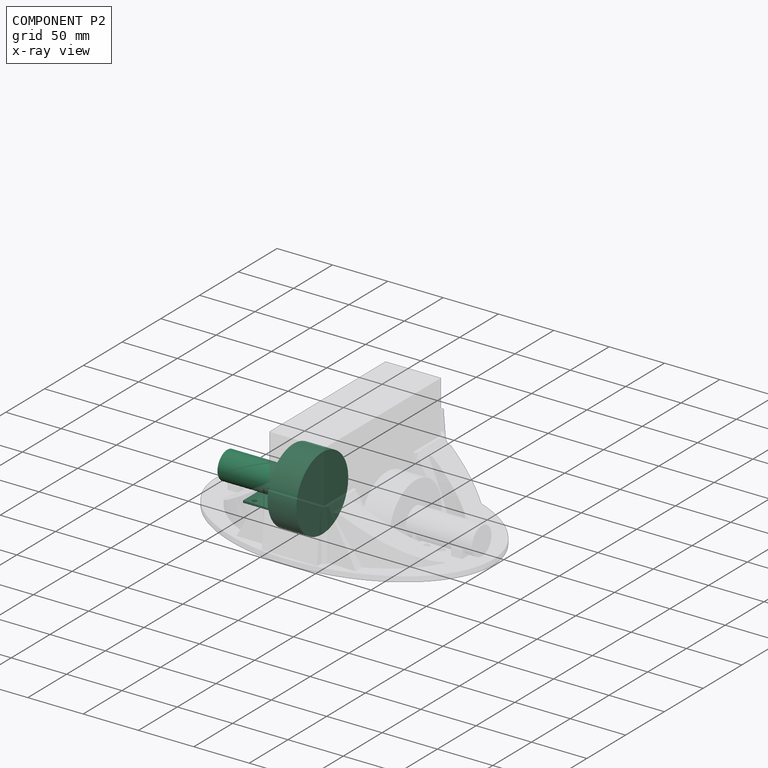
[diagram: component P2 — x-ray view]
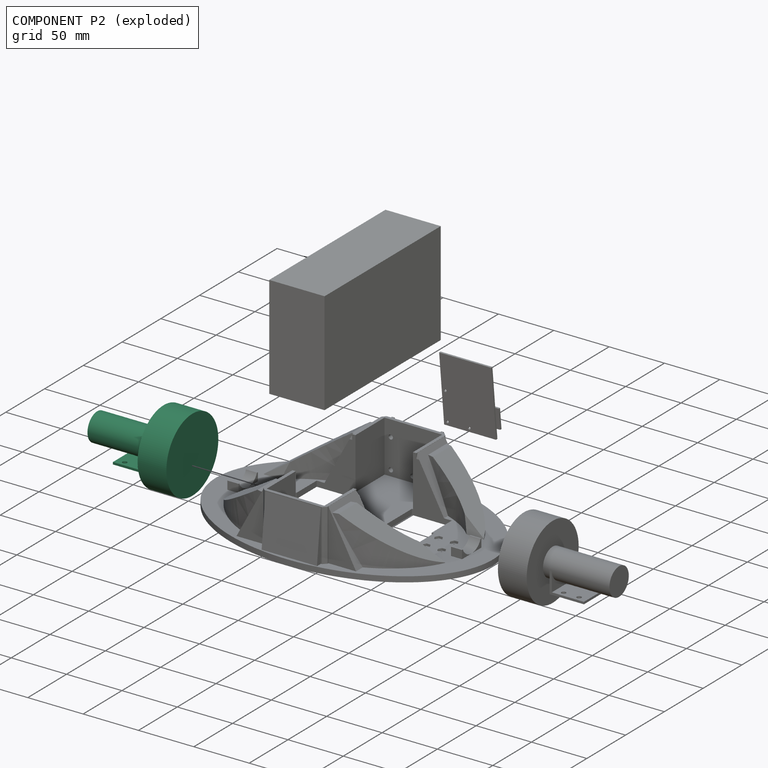
[diagram: component P2 — exploded]
COMPONENT P2 — same part as P1; its construction recipe is shown at P1.
Held by: resting contact with P1 (derived edge).
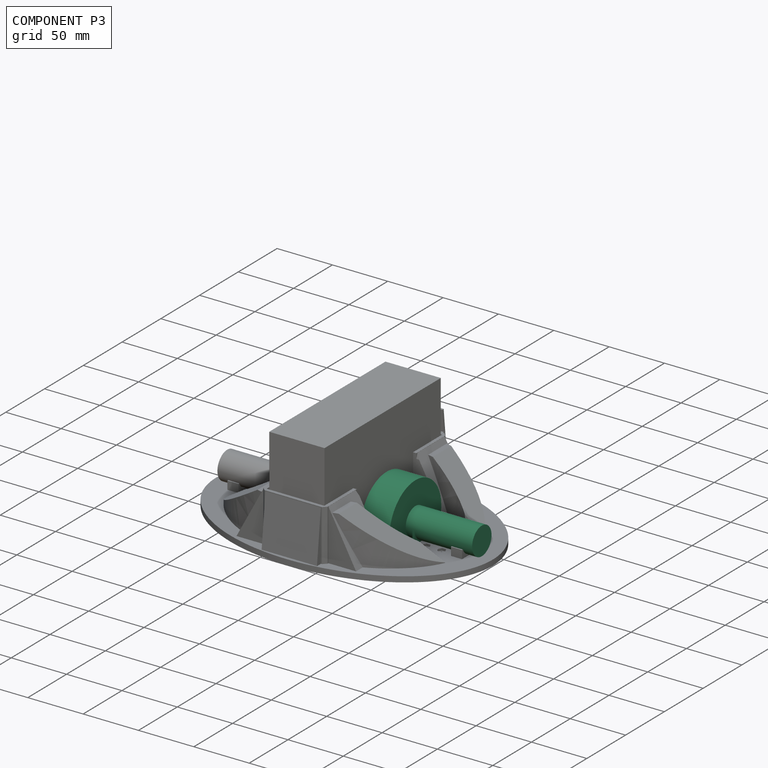
[diagram: component P3 — assembled]
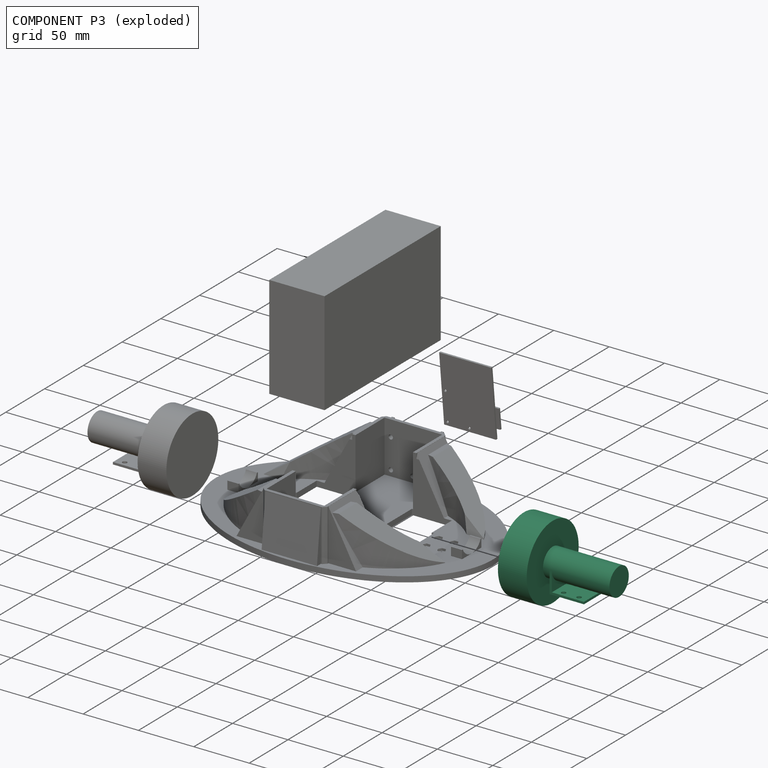
[diagram: component P3 — exploded]
COMPONENT P3 — same part as P1; its construction recipe is shown at P1.
Held by: resting contact with P1 (derived edge).
